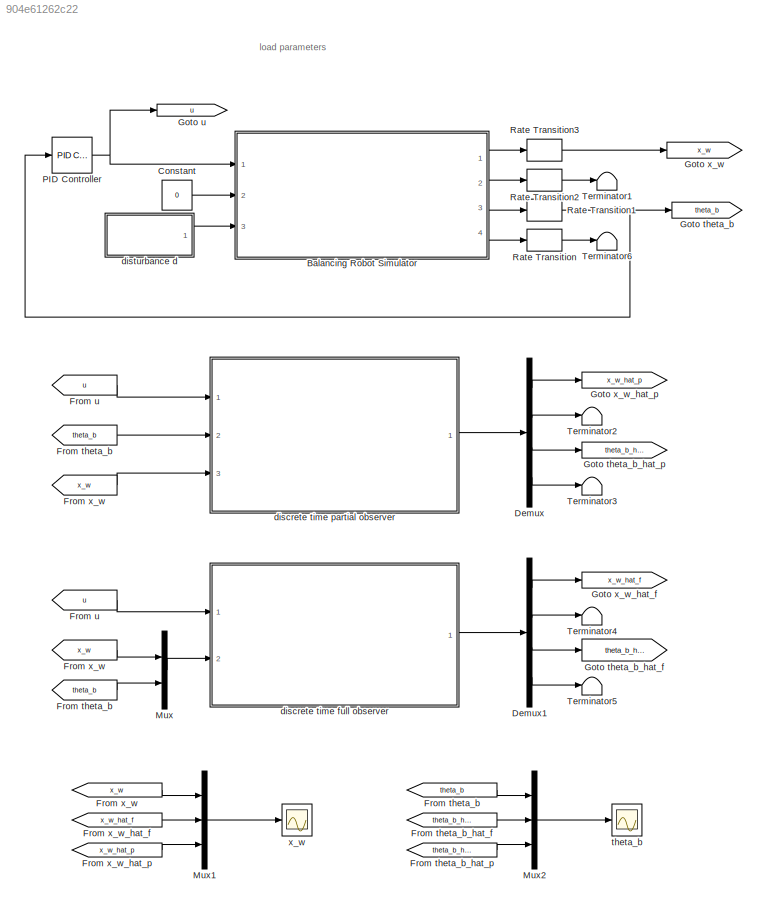
MODEL slx_904e61262c22
KIND model
CONFIG AbsTol = auto
CONFIG EnableMultiTasking = on
CONFIG FixedStep = auto
CONFIG MaxStep = auto
CONFIG MinStep = auto
CONFIG RelTol = 1e-3
CONFIG SampleTimeConstraint = Unconstrained
CONFIG Solver = ode45
CONFIG SolverName = ode45
CONFIG StartTime = 0.0
CONFIG StopTime = 10.0
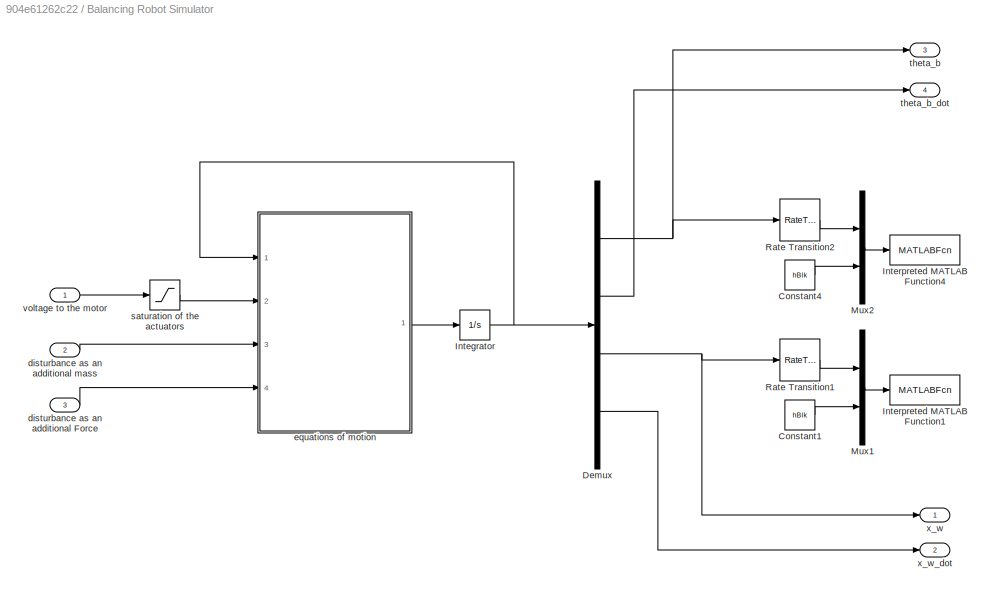
BLOCK [SubSystem] Balancing Robot Simulator
  Ports = [3, 4]
  RequestExecContextInheritance = off
  ShowPortLabels = SignalName
  Variant = off
BLOCK [Constant] Balancing Robot Simulator/Constant1
  Value = hBlk
BLOCK [Constant] Balancing Robot Simulator/Constant4
  Value = hBlk
BLOCK [Demux] Balancing Robot Simulator/Demux
  DisplayOption = bar
  Ports = [1, 4]
BLOCK [Integrator] Balancing Robot Simulator/Integrator
  InitialCondition = X_0
  Ports = [1, 1]
BLOCK [MATLABFcn] Balancing Robot Simulator/Interpreted MATLAB Function1
  MATLABFcn = set_param(u(2),'x_w',num2str(u(1)))
  OutputDimensions = 0
  Ports = [1]
  SampleTime = 0.1
BLOCK [MATLABFcn] Balancing Robot Simulator/Interpreted MATLAB Function4
  MATLABFcn = set_param(u(2),'Theta',num2str(u(1)))
  OutputDimensions = 0
  Ports = [1]
BLOCK [Mux] Balancing Robot Simulator/Mux1
  DisplayOption = bar
  Inputs = 2
  Ports = [2, 1]
BLOCK [Mux] Balancing Robot Simulator/Mux2
  DisplayOption = bar
  Inputs = 2
  Ports = [2, 1]
BLOCK [RateTransition] Balancing Robot Simulator/Rate Transition1
  OutPortSampleTime = 0.1
BLOCK [RateTransition] Balancing Robot Simulator/Rate Transition2
  OutPortSampleTime = 0.1
BLOCK [Inport] Balancing Robot Simulator/disturbance as an additional Force
  IconDisplay = Port number
  Port = 3
BLOCK [Inport] Balancing Robot Simulator/disturbance as an additional mass 
  IconDisplay = Port number
  Port = 2
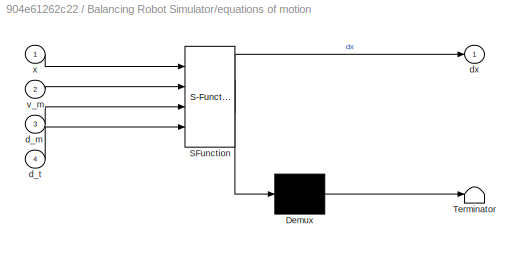
BLOCK [SubSystem] Balancing Robot Simulator/equations of motion
  ErrorFcn = Stateflow.Translate.translate
  PermitHierarchicalResolution = ExplicitOnly
  Ports = [4, 1]
  RequestExecContextInheritance = off
  SFBlockType = MATLAB Function
  TreatAsAtomicUnit = on
  Variant = off
BLOCK [Demux] Balancing Robot Simulator/equations of motion/ Demux 
  Outputs = 1
  Ports = [1, 1]
BLOCK [S-Function] Balancing Robot Simulator/equations of motion/ SFunction 
  EnableBusSupport = on
  FunctionName = sf_sfun
  Parameters = I_b,I_w,K_e,K_t,L_m,R_m,b_f,b_m,g,l_b,l_w,m_b,m_w
  PortCounts = [4 2]
  Ports = [4, 2]
  SFcnIsStateOwnerBlock = off
  SFunctionDeploymentMode = off
  Tag = Stateflow S-Function LabB_ObserverOverSimulator_Discrete 2
BLOCK [Terminator] Balancing Robot Simulator/equations of motion/ Terminator 
BLOCK [Inport] Balancing Robot Simulator/equations of motion/d_m
  IconDisplay = Port number
  Port = 3
BLOCK [Inport] Balancing Robot Simulator/equations of motion/d_t
  IconDisplay = Port number
  Port = 4
BLOCK [Outport] Balancing Robot Simulator/equations of motion/dx
  IconDisplay = Port number
BLOCK [Inport] Balancing Robot Simulator/equations of motion/v_m
  IconDisplay = Port number
  Port = 2
BLOCK [Inport] Balancing Robot Simulator/equations of motion/x
  IconDisplay = Port number
BLOCK [Saturate] Balancing Robot Simulator/saturation of the actuators
  InputPortMap = u0
  LowerLimit = -v_m_limit
  Ports = [1, 1]
  UpperLimit = v_m_limit
BLOCK [Outport] Balancing Robot Simulator/theta_b
  IconDisplay = Port number
  Port = 3
BLOCK [Outport] Balancing Robot Simulator/theta_b_dot 
  IconDisplay = Port number
  Port = 4
BLOCK [Inport] Balancing Robot Simulator/voltage to the motor
  IconDisplay = Port number
BLOCK [Outport] Balancing Robot Simulator/x_w
  IconDisplay = Port number
BLOCK [Outport] Balancing Robot Simulator/x_w_dot
  IconDisplay = Port number
  Port = 2
BLOCK [Constant] Constant
  Value = 0
BLOCK [Demux] Demux
  DisplayOption = bar
  Ports = [1, 4]
BLOCK [Demux] Demux1
  DisplayOption = bar
  Ports = [1, 4]
BLOCK [From] From theta_b
  GotoTag = theta_b
BLOCK [From] From theta_b 
  GotoTag = theta_b
BLOCK [From] From theta_b  
  GotoTag = theta_b
BLOCK [From] From theta_b_hat_f
  GotoTag = theta_b_hat_f
BLOCK [From] From theta_b_hat_p
  GotoTag = theta_b_hat_p
BLOCK [From] From u
  GotoTag = u
BLOCK [From] From u 
  GotoTag = u
BLOCK [From] From x_w
  GotoTag = x_w
BLOCK [From] From x_w 
  GotoTag = x_w
BLOCK [From] From x_w  
  GotoTag = x_w
BLOCK [From] From x_w_hat_f
  GotoTag = x_w_hat_f
BLOCK [From] From x_w_hat_p 
  GotoTag = x_w_hat_p
BLOCK [Goto] Goto theta_b
  GotoTag = theta_b
BLOCK [Goto] Goto theta_b_hat_f
  GotoTag = theta_b_hat_f
BLOCK [Goto] Goto theta_b_hat_p
  GotoTag = theta_b_hat_p
BLOCK [Goto] Goto u
  GotoTag = u
BLOCK [Goto] Goto x_w
  GotoTag = x_w
BLOCK [Goto] Goto x_w_hat_f
  GotoTag = x_w_hat_f
BLOCK [Goto] Goto x_w_hat_p
  GotoTag = x_w_hat_p
BLOCK [Mux] Mux
  DisplayOption = bar
  Inputs = 2
  Ports = [2, 1]
BLOCK [Mux] Mux1
  DisplayOption = bar
  Inputs = 3
  Ports = [3, 1]
BLOCK [Mux] Mux2
  DisplayOption = bar
  Inputs = 3
  Ports = [3, 1]
BLOCK [Reference] PID Controller  REF=simulink/Continuous/PID Controller
  Ports = [1, 1]
  SourceBlock = simulink/Continuous/PID Controller
  SourceProductBaseCode = SL
  SourceProductName = Simulink
  SourceType = PID 1dof
BLOCK [RateTransition] Rate Transition
  OutPortSampleTime = fSamplingPeriod
BLOCK [RateTransition] Rate Transition1
  OutPortSampleTime = fSamplingPeriod
BLOCK [RateTransition] Rate Transition2
  OutPortSampleTime = fSamplingPeriod
BLOCK [RateTransition] Rate Transition3
  OutPortSampleTime = fSamplingPeriod
BLOCK [Terminator] Terminator1
BLOCK [Terminator] Terminator2
BLOCK [Terminator] Terminator3
BLOCK [Terminator] Terminator4
BLOCK [Terminator] Terminator5
BLOCK [Terminator] Terminator6
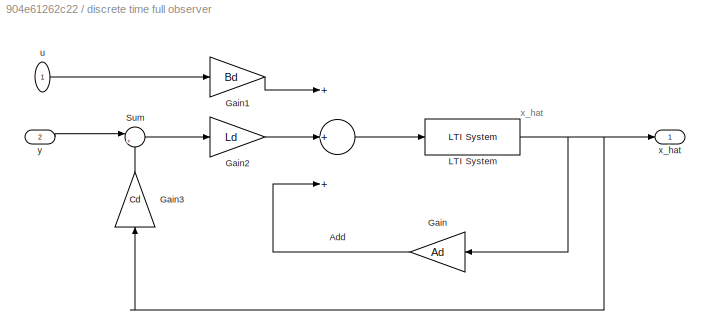
BLOCK [SubSystem] discrete time full observer
  Ports = [2, 1]
  RequestExecContextInheritance = off
  Variant = off
BLOCK [Sum] discrete time full observer/Add
  InputSameDT = off
  Inputs = +++
  OutDataTypeStr = Inherit: Inherit via internal rule
  Ports = [3, 1]
  SaturateOnIntegerOverflow = off
BLOCK [Gain] discrete time full observer/Gain
  Gain = Ad
  Multiplication = Matrix(K*u)
  OutDataTypeStr = Inherit: Inherit via internal rule
  ParamDataTypeStr = Inherit: Inherit via internal rule
  SaturateOnIntegerOverflow = off
BLOCK [Gain] discrete time full observer/Gain1
  Gain = Bd
  Multiplication = Matrix(K*u)
  OutDataTypeStr = Inherit: Inherit via internal rule
  ParamDataTypeStr = Inherit: Inherit via internal rule
  SaturateOnIntegerOverflow = off
BLOCK [Gain] discrete time full observer/Gain2
  Gain = Ld
  Multiplication = Matrix(K*u)
  OutDataTypeStr = Inherit: Inherit via internal rule
  ParamDataTypeStr = Inherit: Inherit via internal rule
  SaturateOnIntegerOverflow = off
BLOCK [Gain] discrete time full observer/Gain3
  Gain = Cd
  Multiplication = Matrix(K*u)
  OutDataTypeStr = Inherit: Inherit via internal rule
  ParamDataTypeStr = Inherit: Inherit via internal rule
  SaturateOnIntegerOverflow = off
BLOCK [Reference] discrete time full observer/LTI System  REF=cstblocks/LTI System
  Ports = [1, 1]
  SourceBlock = cstblocks/LTI System
  SourceProductBaseCode = CT
  SourceProductName = Control System Toolbox
  SourceType = LTI Block
BLOCK [Sum] discrete time full observer/Sum
  IconShape = round
  InputSameDT = off
  Inputs = |+-
  OutDataTypeStr = Inherit: Inherit via internal rule
  Ports = [2, 1]
  SaturateOnIntegerOverflow = off
BLOCK [Inport] discrete time full observer/u
  IconDisplay = Port number
BLOCK [Outport] discrete time full observer/x_hat
  IconDisplay = Port number
BLOCK [Inport] discrete time full observer/y
  IconDisplay = Port number
  Port = 2
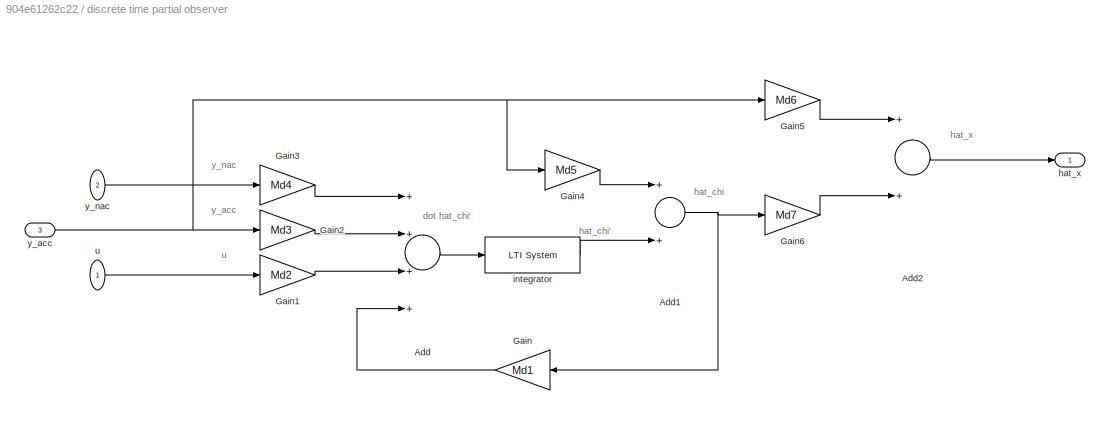
BLOCK [SubSystem] discrete time partial observer
  Ports = [3, 1]
  RequestExecContextInheritance = off
  Variant = off
BLOCK [Sum] discrete time partial observer/Add
  InputSameDT = off
  Inputs = ++++
  OutDataTypeStr = Inherit: Inherit via internal rule
  Ports = [4, 1]
  SaturateOnIntegerOverflow = off
BLOCK [Sum] discrete time partial observer/Add1
  InputSameDT = off
  OutDataTypeStr = Inherit: Inherit via internal rule
  Ports = [2, 1]
  SaturateOnIntegerOverflow = off
BLOCK [Sum] discrete time partial observer/Add2
  InputSameDT = off
  OutDataTypeStr = Inherit: Inherit via internal rule
  Ports = [2, 1]
  SaturateOnIntegerOverflow = off
BLOCK [Gain] discrete time partial observer/Gain
  Gain = Md1
  Multiplication = Matrix(K*u)
  OutDataTypeStr = Inherit: Inherit via internal rule
  ParamDataTypeStr = Inherit: Inherit via internal rule
  SaturateOnIntegerOverflow = off
BLOCK [Gain] discrete time partial observer/Gain1
  Gain = Md2
  Multiplication = Matrix(K*u)
  OutDataTypeStr = Inherit: Inherit via internal rule
  ParamDataTypeStr = Inherit: Inherit via internal rule
  SaturateOnIntegerOverflow = off
BLOCK [Gain] discrete time partial observer/Gain2
  Gain = Md3
  Multiplication = Matrix(K*u)
  OutDataTypeStr = Inherit: Inherit via internal rule
  ParamDataTypeStr = Inherit: Inherit via internal rule
  SaturateOnIntegerOverflow = off
BLOCK [Gain] discrete time partial observer/Gain3
  Gain = Md4
  Multiplication = Matrix(K*u)
  OutDataTypeStr = Inherit: Inherit via internal rule
  ParamDataTypeStr = Inherit: Inherit via internal rule
  SaturateOnIntegerOverflow = off
BLOCK [Gain] discrete time partial observer/Gain4
  Gain = Md5
  Multiplication = Matrix(K*u)
  OutDataTypeStr = Inherit: Inherit via internal rule
  ParamDataTypeStr = Inherit: Inherit via internal rule
  SaturateOnIntegerOverflow = off
BLOCK [Gain] discrete time partial observer/Gain5
  Gain = Md6
  Multiplication = Matrix(K*u)
  OutDataTypeStr = Inherit: Inherit via internal rule
  ParamDataTypeStr = Inherit: Inherit via internal rule
  SaturateOnIntegerOverflow = off
BLOCK [Gain] discrete time partial observer/Gain6
  Gain = Md7
  Multiplication = Matrix(K*u)
  OutDataTypeStr = Inherit: Inherit via internal rule
  ParamDataTypeStr = Inherit: Inherit via internal rule
  SaturateOnIntegerOverflow = off
BLOCK [Outport] discrete time partial observer/hat_x
  IconDisplay = Port number
BLOCK [Reference] discrete time partial observer/integrator  REF=cstblocks/LTI System
  Ports = [1, 1]
  SourceBlock = cstblocks/LTI System
  SourceProductBaseCode = CT
  SourceProductName = Control System Toolbox
  SourceType = LTI Block
BLOCK [Inport] discrete time partial observer/u
  IconDisplay = Port number
BLOCK [Inport] discrete time partial observer/y_acc
  IconDisplay = Port number
  Port = 3
BLOCK [Inport] discrete time partial observer/y_nac
  IconDisplay = Port number
  Port = 2
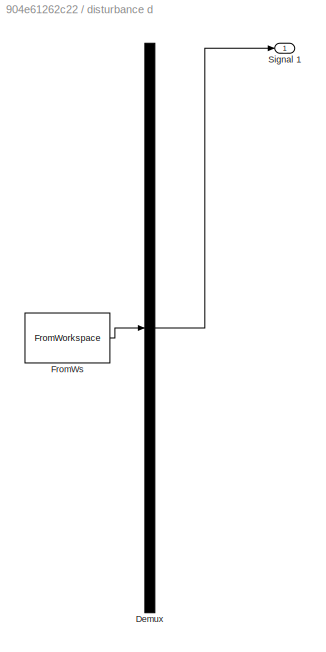
BLOCK [SubSystem] disturbance d
  ClipboardFcn = sigbuilder_block('clipboard');
  CloseFcn = sigbuilder_block('close');
  ContinueFcn = sigbuilder_block('continue');
  CopyFcn = sigbuilder_block('copy');
  DeleteFcn = sigbuilder_block('delete');
  LoadFcn = sigbuilder_block('load');
  MaskHideContents = on
  ModelCloseFcn = sigbuilder_block('modelClose');
  NameChangeFcn = sigbuilder_block('namechange');
  OpenFcn = sigbuilder_block('open',[437.6 199.2 550.4 400 ]);
  PauseFcn = sigbuilder_block('pause');
  Ports = [0, 1]
  PreSaveFcn = sigbuilder_block('preSave');
  RequestExecContextInheritance = off
  StartFcn = sigbuilder_block('start');
  StopFcn = sigbuilder_block('stop');
  Tag = STV Subsys
  Variant = off
BLOCK [Demux] disturbance d/Demux
  Outputs = 1
  Ports = [1, 1]
  Tag = STV Demux
BLOCK [FromWorkspace] disturbance d/FromWs
  SampleTime = 0
  Tag = STV FromWs
  VariableName = tuvar
  ZeroCross = on
BLOCK [Outport] disturbance d/Signal 1
  IconDisplay = Port number
  Tag = STV Outport
BLOCK [Scope] theta_b
  NumInputPorts = 1
  Ports = [1]
  ScopeSpecificationString = Simulink.scopes.TimeScopeBlockCfg('CurrentConfiguration', extmgr.ConfigurationSet(extmgr.Configuration('Core','General UI',true),extmgr.Configuration('Core','Source UI',true),extmgr.Configuration('Sources','WiredSimulink',true,'DataLogging',true,'DataLoggingVariableName','theta_b','DataLoggingSaveFormat','StructureWithTime','DataLoggingDecimation','1','DataLoggingDecimateData',true),extmgr.Configu...<+1766ch>
BLOCK [Scope] x_w
  NumInputPorts = 1
  Ports = [1]
  ScopeSpecificationString = Simulink.scopes.TimeScopeBlockCfg('CurrentConfiguration', extmgr.ConfigurationSet(extmgr.Configuration('Core','General UI',true),extmgr.Configuration('Core','Source UI',true),extmgr.Configuration('Sources','WiredSimulink',true,'DataLogging',true,'DataLoggingVariableName','x_w','DataLoggingSaveFormat','StructureWithTime','DataLoggingDecimation','1','DataLoggingDecimateData',true),extmgr.Configurati...<+1817ch>
ANNOTATION (root): load parameters
ANNOTATION discrete time full observer: x_hat
ANNOTATION discrete time partial observer: dot hat_chi'
ANNOTATION discrete time partial observer: hat_chi
ANNOTATION discrete time partial observer: hat_chi'
ANNOTATION discrete time partial observer: hat_x
ANNOTATION discrete time partial observer: u
ANNOTATION discrete time partial observer: y_acc
ANNOTATION discrete time partial observer: y_nac
LINE Balancing Robot Simulator/Constant1:1 -> Balancing Robot Simulator/Mux1:2
LINE Balancing Robot Simulator/Constant4:1 -> Balancing Robot Simulator/Mux2:2
NET Balancing Robot Simulator/Demux:1 -> Balancing Robot Simulator/Rate Transition2:1, Balancing Robot Simulator/theta_b:1
LINE Balancing Robot Simulator/Demux:2 -> Balancing Robot Simulator/theta_b_dot :1
NET Balancing Robot Simulator/Demux:3 -> Balancing Robot Simulator/Rate Transition1:1, Balancing Robot Simulator/x_w:1
LINE Balancing Robot Simulator/Demux:4 -> Balancing Robot Simulator/x_w_dot:1
NET Balancing Robot Simulator/Integrator:1 -> Balancing Robot Simulator/Demux:1, Balancing Robot Simulator/equations of motion:1
LINE Balancing Robot Simulator/Mux1:1 -> Balancing Robot Simulator/Interpreted MATLAB Function1:1
LINE Balancing Robot Simulator/Mux2:1 -> Balancing Robot Simulator/Interpreted MATLAB Function4:1
LINE Balancing Robot Simulator/Rate Transition1:1 -> Balancing Robot Simulator/Mux1:1
LINE Balancing Robot Simulator/Rate Transition2:1 -> Balancing Robot Simulator/Mux2:1
LINE Balancing Robot Simulator/disturbance as an additional Force:1 -> Balancing Robot Simulator/equations of motion:4
LINE Balancing Robot Simulator/disturbance as an additional mass :1 -> Balancing Robot Simulator/equations of motion:3
LINE Balancing Robot Simulator/equations of motion:1 -> Balancing Robot Simulator/Integrator:1
LINE Balancing Robot Simulator/saturation of the actuators:1 -> Balancing Robot Simulator/equations of motion:2
LINE Balancing Robot Simulator/voltage to the motor:1 -> Balancing Robot Simulator/saturation of the actuators:1
LINE Balancing Robot Simulator:1 -> Rate Transition3:1
LINE Balancing Robot Simulator:2 -> Rate Transition2:1
LINE Balancing Robot Simulator:3 -> Rate Transition1:1
LINE Balancing Robot Simulator:4 -> Rate Transition:1
LINE Constant:1 -> Balancing Robot Simulator:2
LINE Demux1:1 -> Goto x_w_hat_f:1
LINE Demux1:2 -> Terminator4:1
LINE Demux1:3 -> Goto theta_b_hat_f:1
LINE Demux1:4 -> Terminator5:1
LINE Demux:1 -> Goto x_w_hat_p:1
LINE Demux:2 -> Terminator2:1
LINE Demux:3 -> Goto theta_b_hat_p:1
LINE Demux:4 -> Terminator3:1
LINE From theta_b  :1 -> Mux2:1
LINE From theta_b :1 -> Mux:2
LINE From theta_b:1 -> discrete time partial observer:2
LINE From theta_b_hat_f:1 -> Mux2:2
LINE From theta_b_hat_p:1 -> Mux2:3
LINE From u :1 -> discrete time full observer:1
LINE From u:1 -> discrete time partial observer:1
LINE From x_w  :1 -> Mux:1
LINE From x_w :1 -> Mux1:1
LINE From x_w:1 -> discrete time partial observer:3
LINE From x_w_hat_f:1 -> Mux1:2
LINE From x_w_hat_p :1 -> Mux1:3
LINE Mux1:1 -> x_w:1
LINE Mux2:1 -> theta_b:1
LINE Mux:1 -> discrete time full observer:2
NET PID Controller:1 -> Balancing Robot Simulator:1, Goto u:1
NET Rate Transition1:1 -> Goto theta_b:1, PID Controller:1
LINE Rate Transition2:1 -> Terminator1:1
LINE Rate Transition3:1 -> Goto x_w:1
LINE Rate Transition:1 -> Terminator6:1
LINE discrete time full observer/Add:1 -> discrete time full observer/LTI System:1
LINE discrete time full observer/Gain1:1 -> discrete time full observer/Add:1
LINE discrete time full observer/Gain2:1 -> discrete time full observer/Add:2
LINE discrete time full observer/Gain3:1 -> discrete time full observer/Sum:2
LINE discrete time full observer/Gain:1 -> discrete time full observer/Add:3
NET discrete time full observer/LTI System:1 -> discrete time full observer/Gain3:1, discrete time full observer/Gain:1, discrete time full observer/x_hat:1
LINE discrete time full observer/Sum:1 -> discrete time full observer/Gain2:1
LINE discrete time full observer/u:1 -> discrete time full observer/Gain1:1
LINE discrete time full observer/y:1 -> discrete time full observer/Sum:1
LINE discrete time full observer:1 -> Demux1:1
NET discrete time partial observer/Add1:1 -> discrete time partial observer/Gain6:1, discrete time partial observer/Gain:1
LINE discrete time partial observer/Add2:1 -> discrete time partial observer/hat_x:1
LINE discrete time partial observer/Add:1 -> discrete time partial observer/integrator:1
LINE discrete time partial observer/Gain1:1 -> discrete time partial observer/Add:3
LINE discrete time partial observer/Gain2:1 -> discrete time partial observer/Add:2
LINE discrete time partial observer/Gain3:1 -> discrete time partial observer/Add:1
LINE discrete time partial observer/Gain4:1 -> discrete time partial observer/Add1:1
LINE discrete time partial observer/Gain5:1 -> discrete time partial observer/Add2:1
LINE discrete time partial observer/Gain6:1 -> discrete time partial observer/Add2:2
LINE discrete time partial observer/Gain:1 -> discrete time partial observer/Add:4
LINE discrete time partial observer/integrator:1 -> discrete time partial observer/Add1:2
LINE discrete time partial observer/u:1 -> discrete time partial observer/Gain1:1
NET discrete time partial observer/y_acc:1 -> discrete time partial observer/Gain2:1, discrete time partial observer/Gain4:1, discrete time partial observer/Gain5:1
LINE discrete time partial observer/y_nac:1 -> discrete time partial observer/Gain3:1
LINE discrete time partial observer:1 -> Demux:1
LINE disturbance d:1 -> Balancing Robot Simulator:3
note: NET lines group one-source signal fan-out (src -> all destinations, sorted); 1:1 wires keep LINE
CHART Balancing Robot Simulator/equations of motion states=1 transitions=1
  STATE_LABEL 'eML_blk_kernel()'
  STATE_LABEL 'SCRIPT:\nfunction dx = EquationsOfMotion(x,\t\t...\n\t\t\t\t\t\t\t\tv_m,\t...\n\t\t\t\t\t\t\t\td_m,\t... % additional mass on the body\n\t\t\t\t\t\t\t\td_t,\t... % Fource that acted on the body\n\t\t\t\t\t\t\t\tg,\t\t...\n\t\t\t\t\t\t\t\tb_f,\t...\n\t\t\t\t\t\t\t\tm_b,\t...\n\t\t\t\t\t\t\t\tl_b,\t...\n\t\t\t\t\t\t\t\tI_b,\t...\n\t\t\t\t\t\t\t\tm_w,\t...\n\t\t\t\t\t\t\t\tl_w,\t...\n\t\t\t\t\t\t\t\tI_w,\t...\n\t\t\t\t\t\t\t\tR_m,\t...\n\t\t\t\t\t\t\t\tL_m,\t...\n\t\t\t\t\t\t\t\tb_m,\t...\n\t\t\t\t\t\t\t\tK_e,\t...\n\t\t\t\t\t\t\t\tK_t\t\t) %#ok<*INUSL>\n\n% initi...<+1583ch>'
